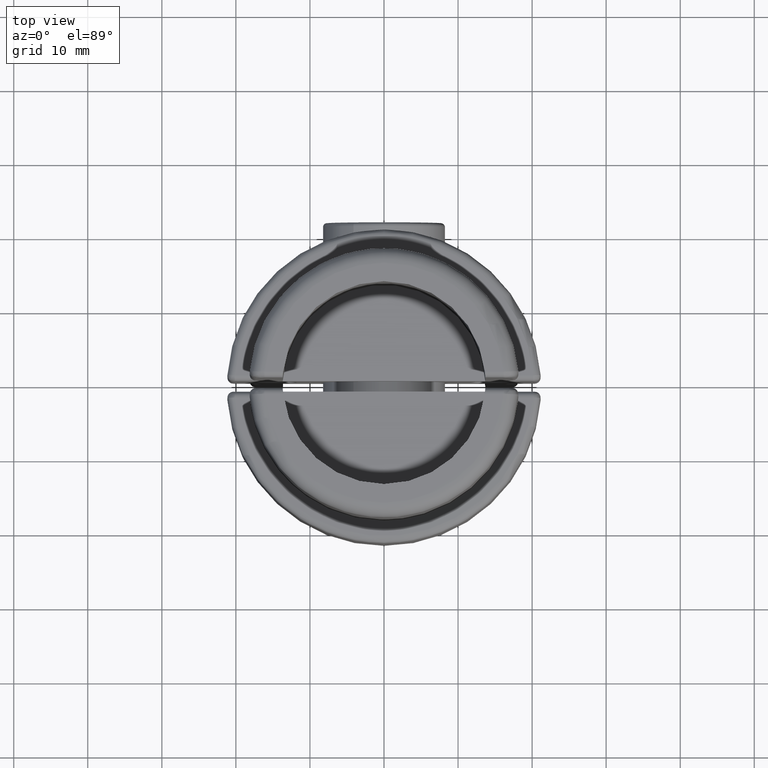
[diagram: clean part render]
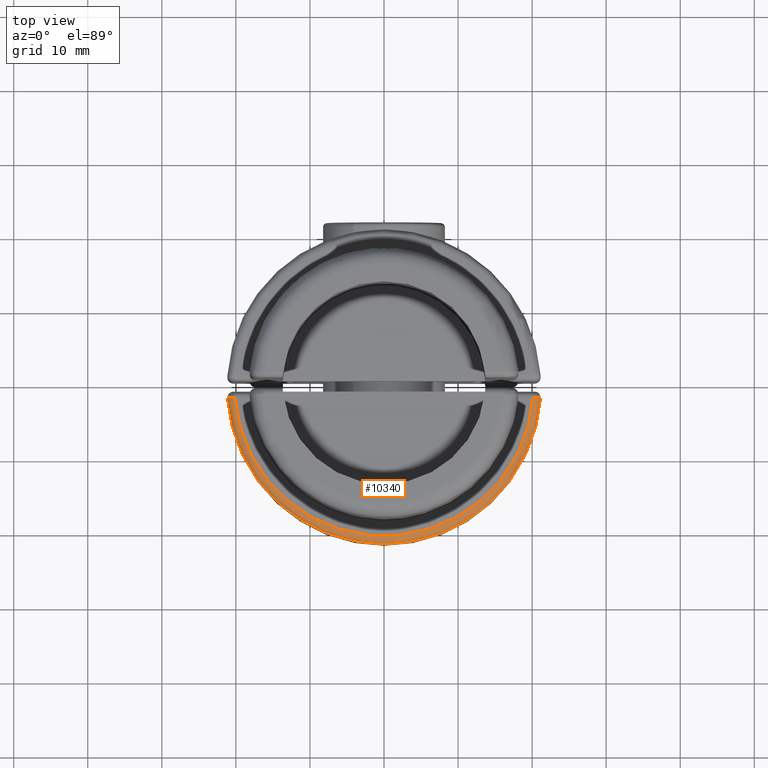
[diagram: same view with one face highlighted and labeled with its STEP entity id]
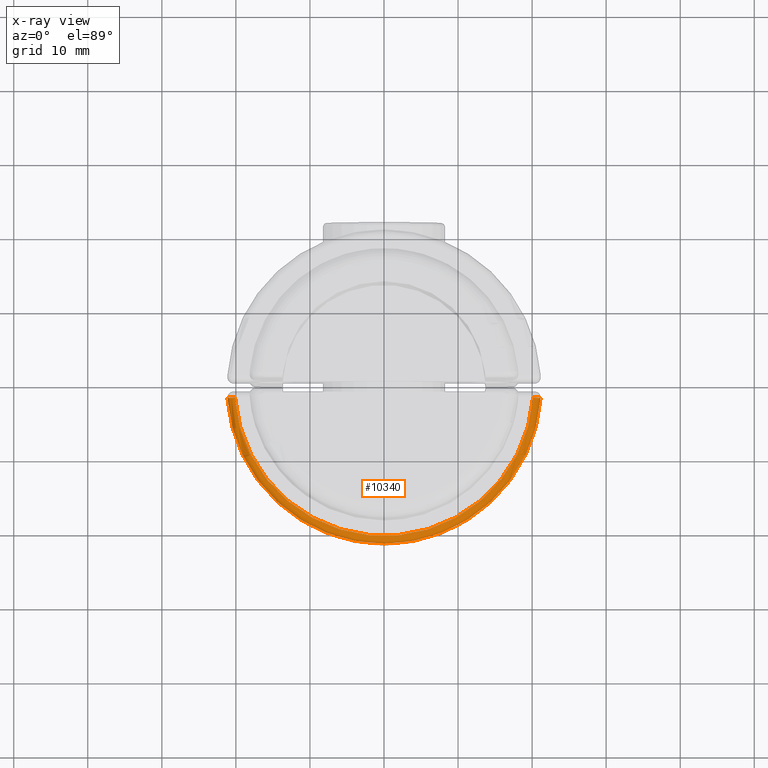
[diagram: x-ray of the same camera — body ghosted, the highlighted face saturated]
A machine part, top view. The second image highlights one B-rep face of the part: STEP entity #10340.
The next image is the same camera in x-ray: the body ghosted, the highlighted face saturated — about 0% of this face is hidden behind the body in this view.
In plain terms, the highlighted toroidal blend (fillet) surface has major radius 20.2 mm and minor (blend) radius 1 mm.
Its self-contained STEP definition (entity closure, byte-faithful):
#30 = ORIENTED_EDGE ( 'NONE', *, *, #10867, .T. ) ;
#140 = CARTESIAN_POINT ( 'NONE',  ( -21.14261263903192045, 0.8588235294117647634, -9.000000000000003553 ) ) ;
#222 = AXIS2_PLACEMENT_3D ( 'NONE', #559, #2343, #3216 ) ;
#559 = CARTESIAN_POINT ( 'NONE',  ( 0.000000000000000000, -0.6999999999999992895, -9.000000000000003553 ) ) ;
#749 = EDGE_CURVE ( 'NONE', #5451, #11359, #9792, .T. ) ;
#979 = FACE_OUTER_BOUND ( 'NONE', #10191, .T. ) ;
#1120 = ORIENTED_EDGE ( 'NONE', *, *, #7466, .T. ) ;
#1645 = CARTESIAN_POINT ( 'NONE',  ( 21.14261263903192045, 0.8588235294117643193, -9.000000000000003553 ) ) ;
#1833 = CARTESIAN_POINT ( 'NONE',  ( -20.40540040234340324, 0.8155090586351085857, -9.974029169559386787 ) ) ;
#1913 = CARTESIAN_POINT ( 'NONE',  ( -20.27606201867292057, 0.8078445913089569164, -10.00000000000000178 ) ) ;
#2329 = AXIS2_PLACEMENT_3D ( 'NONE', #3830, #2915, #10327 ) ;
#2343 = DIRECTION ( 'NONE',  ( 0.000000000000000000, 0.000000000000000000, 1.000000000000000000 ) ) ;
#2915 = DIRECTION ( 'NONE',  ( 0.000000000000000000, 0.000000000000000000, 1.000000000000000000 ) ) ;
#3216 = DIRECTION ( 'NONE',  ( 1.000000000000000000, 0.000000000000000000, 0.000000000000000000 ) ) ;
#3397 = EDGE_CURVE ( 'NONE', #5441, #5660, #3887, .T. ) ;
#3830 = CARTESIAN_POINT ( 'NONE',  ( 0.000000000000000000, -0.6999999999999992895, -9.000000000000003553 ) ) ;
#3887 = CIRCLE ( 'NONE', #6658, 20.19999999999999929 ) ;
#4465 = DIRECTION ( 'NONE',  ( 1.000000000000000000, 0.000000000000000000, 0.000000000000000000 ) ) ;
#4715 = CARTESIAN_POINT ( 'NONE',  ( -20.75780391866938857, 0.8362936228771264968, -9.799563961671514889 ) ) ;
#4922 = CARTESIAN_POINT ( 'NONE',  ( 21.01654517965900482, 0.8514611731736581035, -9.503742392579356491 ) ) ;
#4958 = CARTESIAN_POINT ( 'NONE',  ( 20.40787949372030852, 0.8156883138213782969, -10.00000000000000355 ) ) ;
#5340 = CARTESIAN_POINT ( 'NONE',  ( 0.000000000000000000, -0.6999999999999992895, -10.00000000000000000 ) ) ;
#5441 = VERTEX_POINT ( 'NONE', #6230 ) ;
#5451 = VERTEX_POINT ( 'NONE', #1645 ) ;
#5660 = VERTEX_POINT ( 'NONE', #9254 ) ;
#5782 = CARTESIAN_POINT ( 'NONE',  ( 21.14261263903192045, 0.8588235294117643193, -9.000000000000003553 ) ) ;
#6180 = B_SPLINE_CURVE_WITH_KNOTS ( 'NONE', 3,
 ( #5782, #6731, #10411, #4922, #11348, #7689, #4958, #11547 ),
 .UNSPECIFIED., .F., .F.,
 ( 4, 2, 2, 4 ),
 ( 0.000000000000000000, 0.0003905744169281711101, 0.0007811488338563422201, 0.001562297667712684440 ),
 .UNSPECIFIED. ) ;
#6230 = CARTESIAN_POINT ( 'NONE',  ( -20.14422994308791814, 0.7999999999999999334, -10.00000000000000000 ) ) ;
#6382 = CARTESIAN_POINT ( 'NONE',  ( -21.14261263903190979, 0.8588235294117643193, -9.264131368970467406 ) ) ;
#6658 = AXIS2_PLACEMENT_3D ( 'NONE', #5340, #7347, #4465 ) ;
#6731 = CARTESIAN_POINT ( 'NONE',  ( 21.14261263903192045, 0.8588235294117648744, -9.132058371792963314 ) ) ;
#6922 = CARTESIAN_POINT ( 'NONE',  ( -21.14261263903192045, 0.8588235294117647634, -9.000000000000003553 ) ) ;
#6972 = ORIENTED_EDGE ( 'NONE', *, *, #3397, .F. ) ;
#7331 = CARTESIAN_POINT ( 'NONE',  ( -21.03411681758427676, 0.8525068604441111697, -9.523024955562911842 ) ) ;
#7347 = DIRECTION ( 'NONE',  ( -0.000000000000000000, -0.000000000000000000, -1.000000000000000000 ) ) ;
#7466 = EDGE_CURVE ( 'NONE', #5451, #5660, #6180, .T. ) ;
#7689 = CARTESIAN_POINT ( 'NONE',  ( 20.66636581890222502, 0.8309284086638939471, -9.891340134635324688 ) ) ;
#9168 = CARTESIAN_POINT ( 'NONE',  ( -20.64711615751773621, 0.8297834294504855546, -9.873752569020417980 ) ) ;
#9254 = CARTESIAN_POINT ( 'NONE',  ( 20.14422994308791814, 0.8000000000000003775, -10.00000000000000000 ) ) ;
#9792 = CIRCLE ( 'NONE', #222, 21.19999999999999929 ) ;
#10163 = B_SPLINE_CURVE_WITH_KNOTS ( 'NONE', 3,
 ( #10168, #1913, #1833, #9168, #4715, #7331, #6382, #140 ),
 .UNSPECIFIED., .F., .F.,
 ( 4, 2, 2, 4 ),
 ( 0.000000000000000000, 0.0003905495906279129147, 0.0007810991812558258293, 0.001562198362511655128 ),
 .UNSPECIFIED. ) ;
#10168 = CARTESIAN_POINT ( 'NONE',  ( -20.14422994308791814, 0.7999999999999999334, -10.00000000000000000 ) ) ;
#10191 = EDGE_LOOP ( 'NONE', ( #10438, #1120, #6972, #30 ) ) ;
#10327 = DIRECTION ( 'NONE',  ( 1.000000000000000000, 0.000000000000000000, 0.000000000000000000 ) ) ;
#10340 = ADVANCED_FACE ( 'NONE', ( #979 ), #11542, .T. ) ;
#10411 = CARTESIAN_POINT ( 'NONE',  ( 21.11666536040184283, 0.8573108470200918596, -9.261660247136349611 ) ) ;
#10438 = ORIENTED_EDGE ( 'NONE', *, *, #749, .F. ) ;
#10867 = EDGE_CURVE ( 'NONE', #5441, #11359, #10163, .T. ) ;
#11348 = CARTESIAN_POINT ( 'NONE',  ( 20.94243667716662571, 0.8471272823110597150, -9.614647951196040765 ) ) ;
#11359 = VERTEX_POINT ( 'NONE', #6922 ) ;
#11542 = TOROIDAL_SURFACE ( 'NONE', #2329, 20.19999999999999929, 1.000000000000000000 ) ;
#11547 = CARTESIAN_POINT ( 'NONE',  ( 20.14422994308791814, 0.8000000000000003775, -10.00000000000000000 ) ) ;